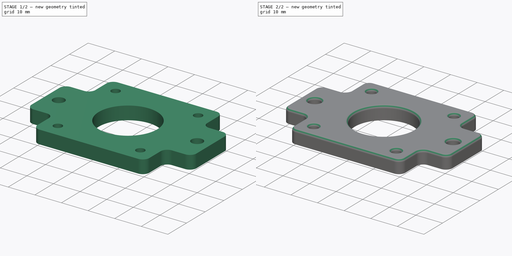
[diagram: build sequence overview — one tinted view per stage of 2, left to right]
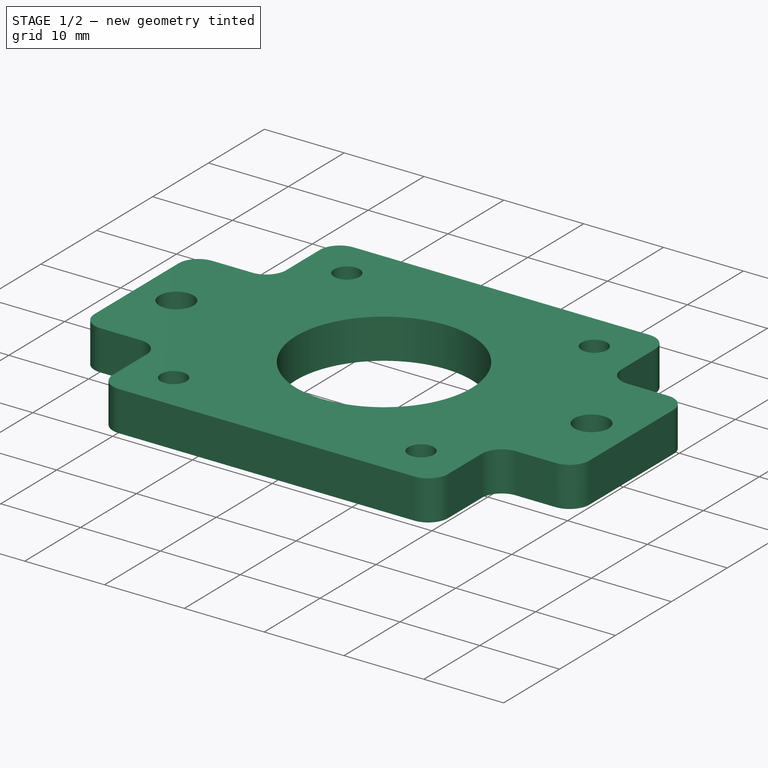
[diagram: stage 1 of 2 — iso view after this stage's code; geometry added in this stage tinted green]
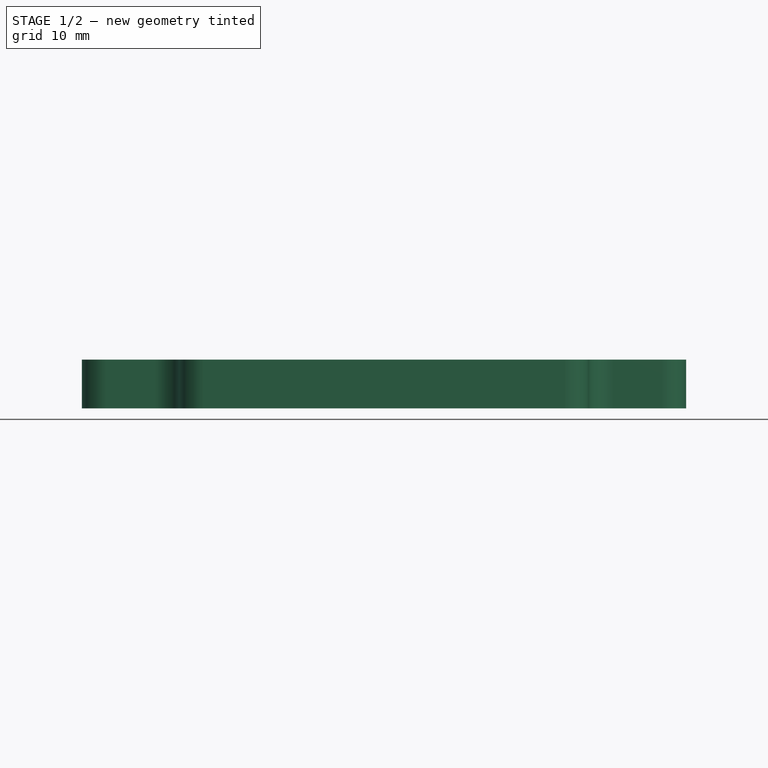
[diagram: stage 1 of 2 — front view after this stage's code; geometry added in this stage tinted green]
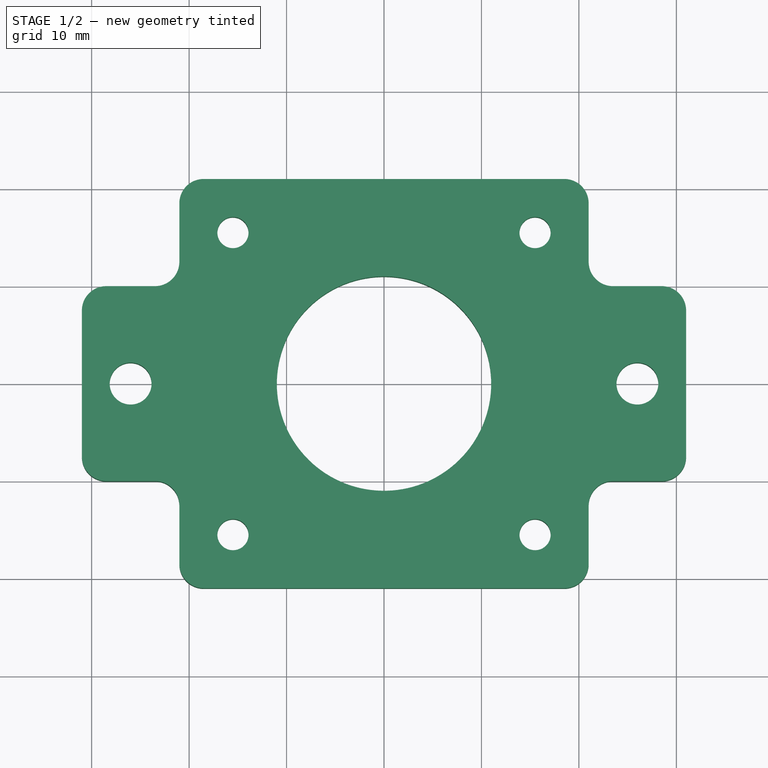
[diagram: stage 1 of 2 — top view after this stage's code; geometry added in this stage tinted green]
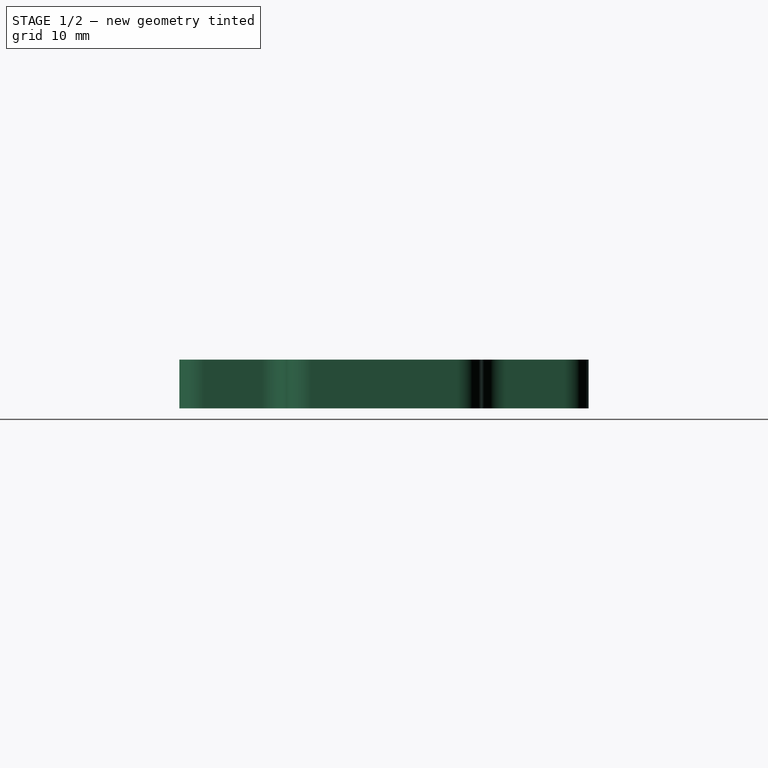
[diagram: stage 1 of 2 — right view after this stage's code; geometry added in this stage tinted green]
FCSTD DOCUMENT  (FreeCAD 0.17R)
Label: Motorhalter
License: All rights reserved
LicenseURL: http://en.wikipedia.org/wiki/All_rights_reserved
objects: PartDesign::Fillet×2, Sketcher::SketchObject×1, PartDesign::Pad×1
note: 5 computed .brp shape members not serialized (recipe doc carries the construction recipe); baked Part::Feature solids carry a one-line shape summary decoded from their .brp

FEATURE [Sketcher::SketchObject] Sketch
  sketch-geometry (19):
    g0: Circle CenterX=0 CenterY=0 CenterZ=0 NormalX=0 NormalY=0 NormalZ=1 Radius=11
    g1: LineSegment StartX=21 StartY=-21 StartZ=0 EndX=21 EndY=-10 EndZ=0
    g2: LineSegment StartX=21 StartY=-10 StartZ=0 EndX=31 EndY=-10 EndZ=0
    g3: LineSegment StartX=31 StartY=-10 StartZ=0 EndX=31 EndY=10 EndZ=0
    g4: LineSegment StartX=31 StartY=10 StartZ=0 EndX=21 EndY=10 EndZ=0
    g5: LineSegment StartX=21 StartY=10 StartZ=0 EndX=21 EndY=21 EndZ=0
    g6: LineSegment StartX=21 StartY=21 StartZ=0 EndX=-21 EndY=21 EndZ=0
    g7: LineSegment StartX=-21 StartY=21 StartZ=0 EndX=-21 EndY=10 EndZ=0
    g8: LineSegment StartX=-21 StartY=10 StartZ=0 EndX=-31 EndY=10 EndZ=0
    g9: LineSegment StartX=-31 StartY=10 StartZ=0 EndX=-31 EndY=-10 EndZ=0
    g10: LineSegment StartX=-31 StartY=-10 StartZ=0 EndX=-21 EndY=-10 EndZ=0
    g11: LineSegment StartX=-21 StartY=-10 StartZ=0 EndX=-21 EndY=-21 EndZ=0
    g12: LineSegment StartX=-21 StartY=-21 StartZ=0 EndX=21 EndY=-21 EndZ=0
    g13: Circle CenterX=-15.5 CenterY=-15.5 CenterZ=0 NormalX=0 NormalY=0 NormalZ=1 Radius=1.6
    g14: Circle CenterX=15.5 CenterY=-15.5 CenterZ=0 NormalX=0 NormalY=0 NormalZ=1 Radius=1.6
    g15: Circle CenterX=15.5 CenterY=15.5 CenterZ=0 NormalX=0 NormalY=0 NormalZ=1 Radius=1.6
    g16: Circle CenterX=-15.5 CenterY=15.5 CenterZ=0 NormalX=0 NormalY=0 NormalZ=1 Radius=1.6
    g17: Circle CenterX=26 CenterY=0 CenterZ=0 NormalX=0 NormalY=0 NormalZ=1 Radius=2.15
    g18: Circle CenterX=-26 CenterY=0 CenterZ=0 NormalX=0 NormalY=0 NormalZ=1 Radius=2.15
  constraints (52):
    c: Coincident(g0,g-1)
    c: Radius(g0) = 11
    c: Vertical(g1)
    c: Coincident(g1,g2)
    c: Horizontal(g2)
    c: Coincident(g2,g3)
    c: Vertical(g3)
    c: Coincident(g3,g4)
    c: Coincident(g4,g5)
    c: Vertical(g5)
    c: Coincident(g5,g6)
    c: Horizontal(g6)
    c: Coincident(g6,g7)
    c: Vertical(g7)
    c: Coincident(g7,g8)
    c: Horizontal(g8)
    c: Coincident(g8,g9)
    c: Vertical(g9)
    c: Coincident(g9,g10)
    c: Horizontal(g10)
    c: Coincident(g10,g11)
    c: Vertical(g11)
    c: Coincident(g11,g12)
    c: Coincident(g12,g1)
    c: Horizontal(g12)
    c: Horizontal(g4)
    c: Symmetric(g6,g5,g-2)
    c: Symmetric(g11,g1,g-2)
    c: Symmetric(g2,g9,g-2)
    c: Symmetric(g9,g8,g-1)
    c: Equal(g3,g9)
    c: Equal(g5,g7)
    c: Equal(g11,g1)
    c: Symmetric(g11,g6,g-1)
    c: Symmetric(g18,g17,g-2)
    c: Symmetric(g16,g15,g-2)
    c: Symmetric(g13,g14,g-2)
    c: Symmetric(g16,g13,g-1)
    c: PointOnObject(g18,g-1)
    c: Radius(g17) = 2.15
    c: Equal(g17,g18)
    c: Radius(g16) = 1.6
    c: Equal(g16,g15)
    c: Equal(g16,g14)
    c: Equal(g16,g13)
    c: DistanceX(g13,g14) = 31
    c: DistanceY(g14,g15) = 31
    c: DistanceX(g18,g-1) = 26
    c: DistanceX(g-1,g2) = 31
    c: DistanceX(g-1,g1) = 21
    c: DistanceY(g2,g3) = 20
    c: DistanceY(g1,g5) = 42
FEATURE [PartDesign::Pad] Pad
  Length = 5
  Length2 = 100
  Sketch = -> Sketch
  Type = 0
FEATURE [PartDesign::Fillet] Fillet
  Base = -> Pad [Edge8,Edge14,Edge2,Edge1,Edge32,Edge29,Edge26,Edge23,Edge20,Edge17,Edge11,Edge5]
  Radius = 2.5
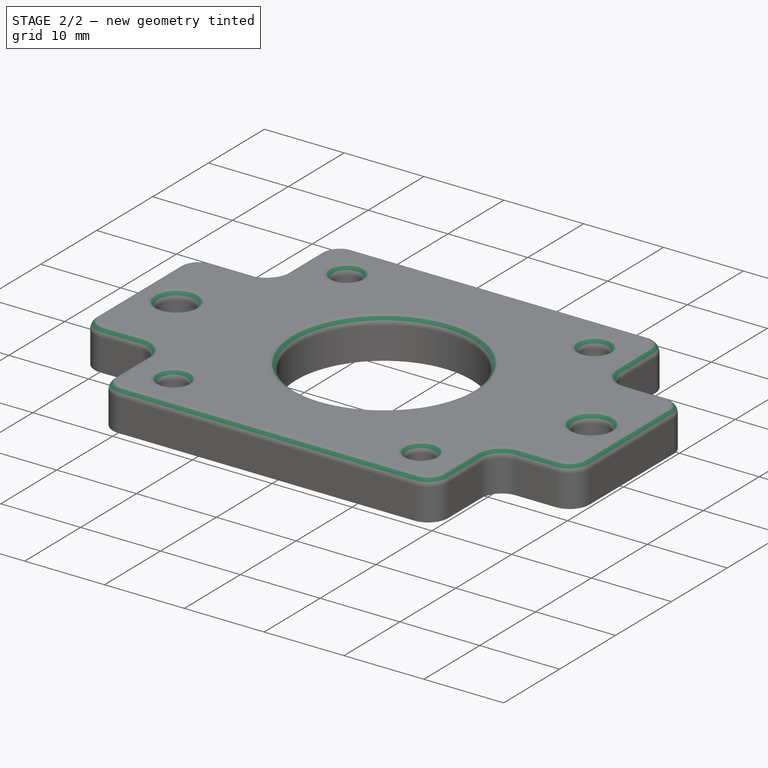
[diagram: stage 2 of 2 — iso view after this stage's code; geometry added in this stage tinted green]
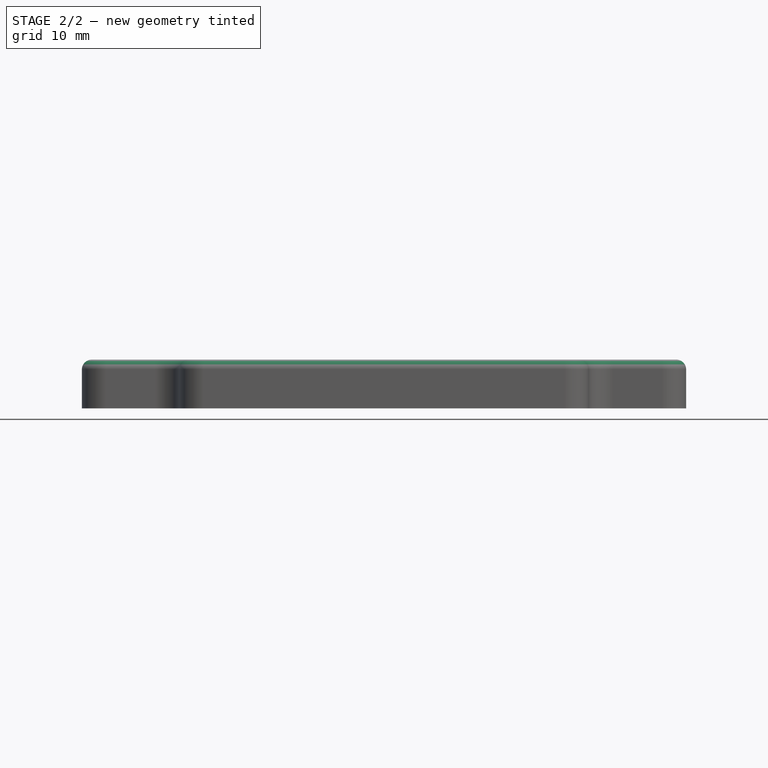
[diagram: stage 2 of 2 — front view after this stage's code; geometry added in this stage tinted green]
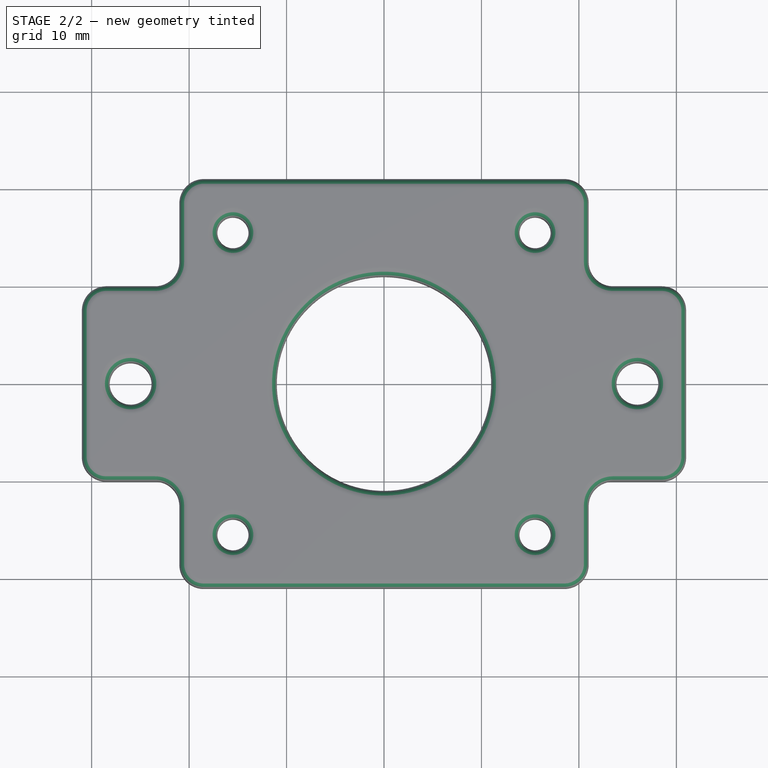
[diagram: stage 2 of 2 — top view after this stage's code; geometry added in this stage tinted green]
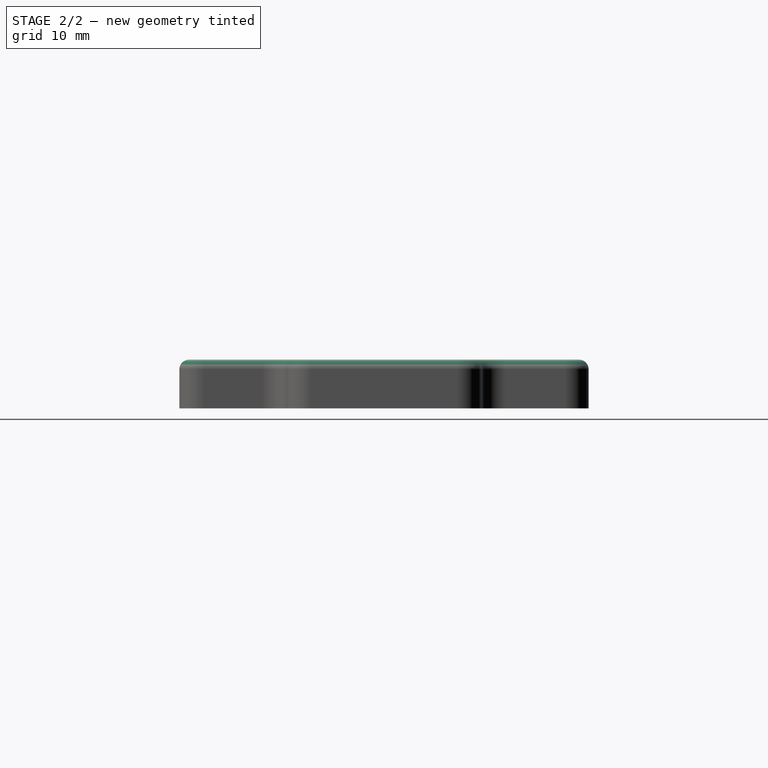
[diagram: stage 2 of 2 — right view after this stage's code; geometry added in this stage tinted green]
FEATURE [PartDesign::Fillet] Fillet001
  Base = -> Fillet [Edge4,Edge36,Edge38,Edge39,Edge40,Edge41,Edge42,Edge43,Edge44,Edge45,Edge46,Edge47,Edge48,Edge49,Edge50,Edge51,Edge52,Edge53,Edge54,Edge55,Edge56,Edge57,Edge58,Edge59,Edge60,Edge61,Edge62,Edge63,Edge64,Edge65,Edge66]
  Radius = 1
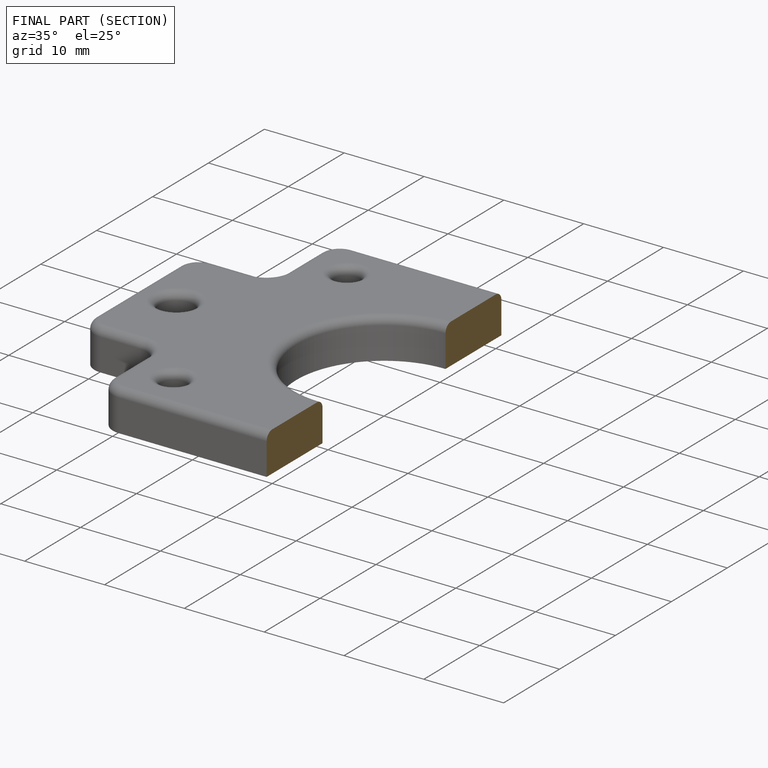
[diagram: finished part — half-section view (interior)]
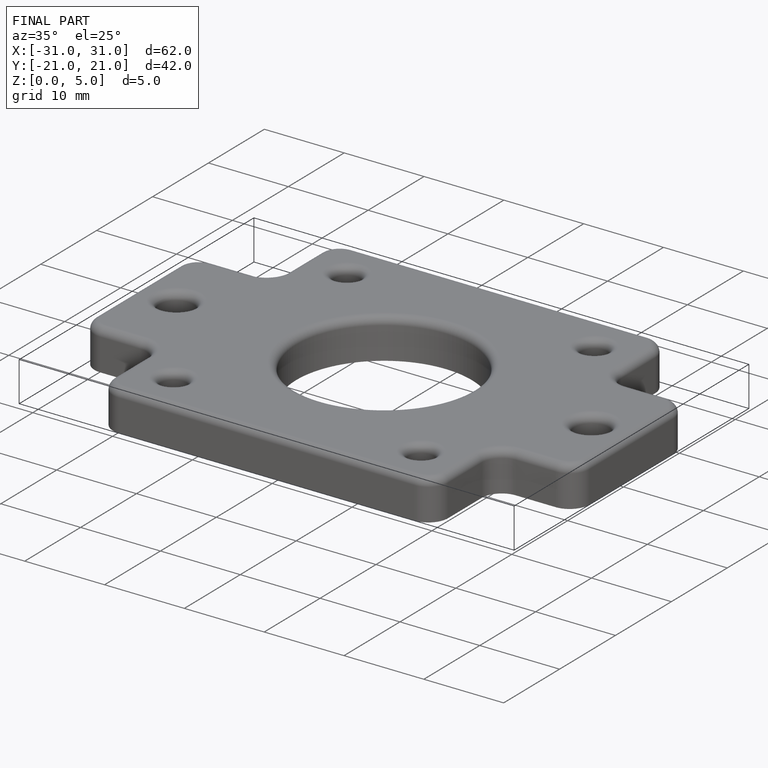
[diagram: finished part — iso view with bounding-box wireframe]
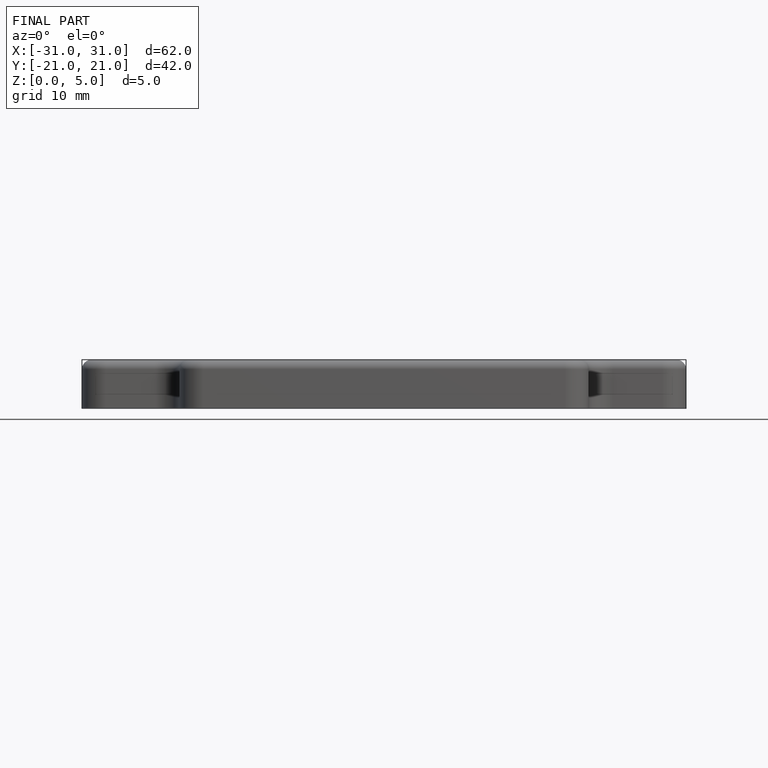
[diagram: finished part — front view with bounding-box wireframe]
